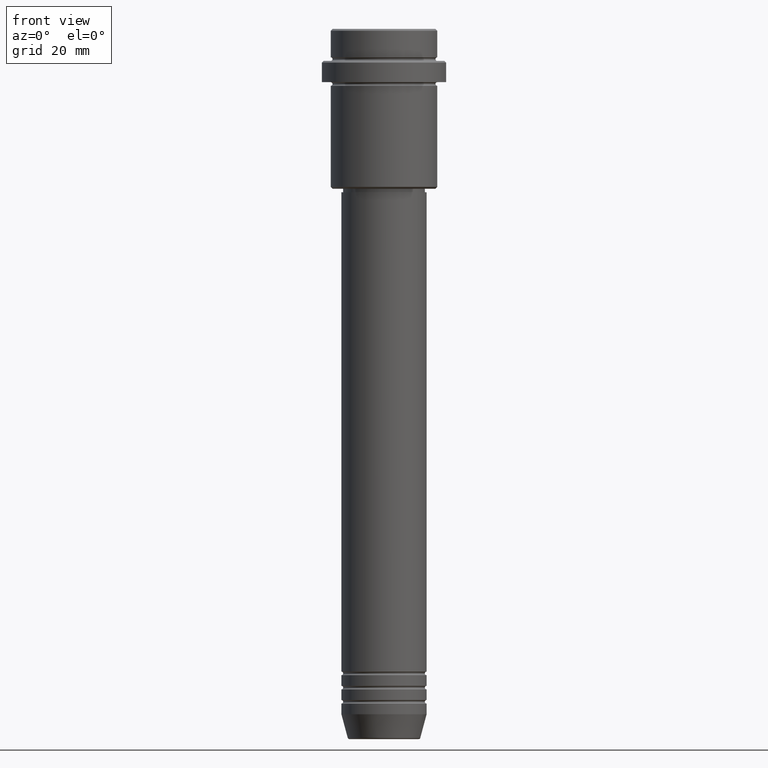
[diagram: clean part render]
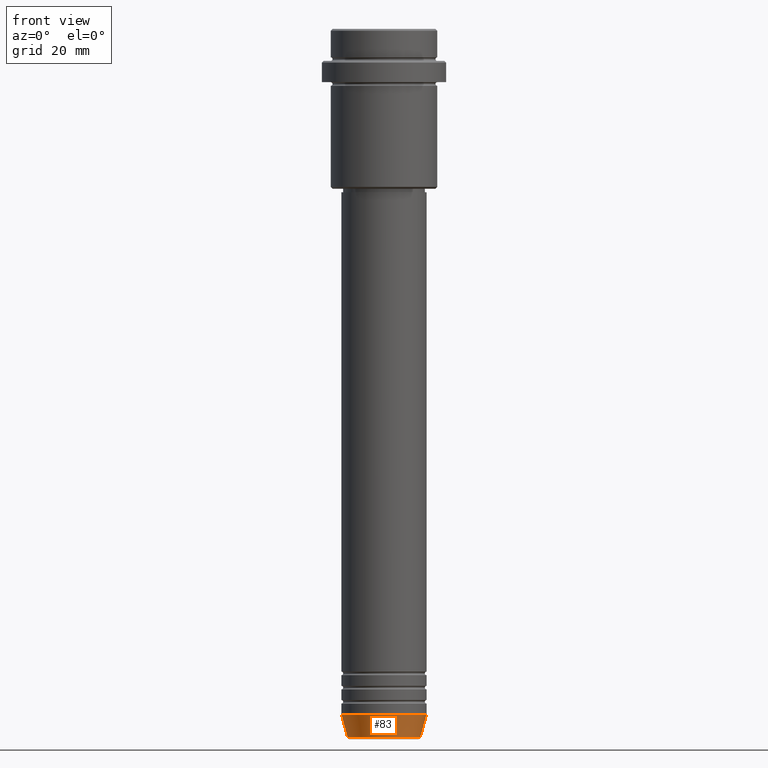
[diagram: same view with one face highlighted and labeled with its STEP entity id]
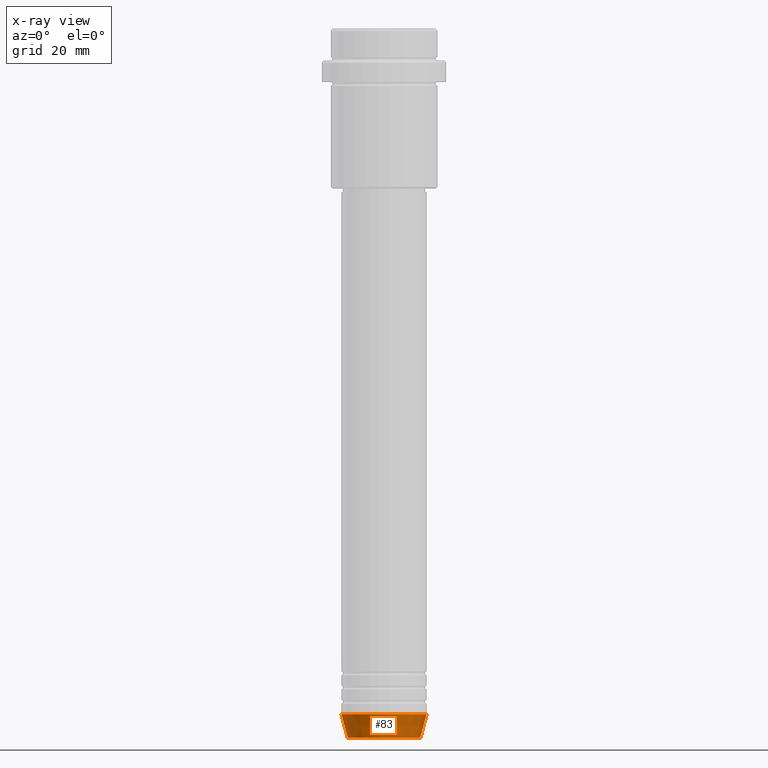
[diagram: x-ray of the same camera — body ghosted, the highlighted face saturated]
A machine part, front view. The second image highlights one B-rep face of the part: STEP entity #83.
The next image is the same camera in x-ray: the body ghosted, the highlighted face saturated — about 0% of this face is hidden behind the body in this view.
In plain terms, the highlighted conical surface has half-angle 15 deg.
Its self-contained STEP definition (entity closure, byte-faithful):
#1 = CARTESIAN_POINT ( 'NONE',  ( 10.22365507213719127, 0.000000000000000000, -199.6294095225512706 ) ) ;
#30 = DIRECTION ( 'NONE',  ( 1.000000000000000000, 0.000000000000000000, 0.000000000000000000 ) ) ;
#34 = VERTEX_POINT ( 'NONE', #720 ) ;
#40 = EDGE_CURVE ( 'NONE', #262, #34, #963, .T. ) ;
#83 = ADVANCED_FACE ( 'NONE', ( #483 ), #271, .T. ) ;
#113 = VERTEX_POINT ( 'NONE', #388 ) ;
#125 = CIRCLE ( 'NONE', #557, 10.22365507213719127 ) ;
#148 = DIRECTION ( 'NONE',  ( -0.000000000000000000, -0.000000000000000000, 1.000000000000000000 ) ) ;
#168 = CARTESIAN_POINT ( 'NONE',  ( 12.00000000000000000, 0.000000000000000000, -193.0000000000000000 ) ) ;
#222 = VECTOR ( 'NONE', #949, 1000.000000000000000 ) ;
#244 = DIRECTION ( 'NONE',  ( -0.2588190451025213501, 3.169619151431772337E-17, 0.9659258262890680902 ) ) ;
#262 = VERTEX_POINT ( 'NONE', #1055 ) ;
#271 = CONICAL_SURFACE ( 'NONE', #671, 12.00000000000000000, 0.2617993877991500740 ) ;
#338 = ORIENTED_EDGE ( 'NONE', *, *, #40, .F. ) ;
#353 = ORIENTED_EDGE ( 'NONE', *, *, #490, .T. ) ;
#388 = CARTESIAN_POINT ( 'NONE',  ( -10.22365507213719127, 1.360806402472382744E-15, -199.6294095225512706 ) ) ;
#463 = DIRECTION ( 'NONE',  ( -0.000000000000000000, -0.000000000000000000, 1.000000000000000000 ) ) ;
#483 = FACE_OUTER_BOUND ( 'NONE', #566, .T. ) ;
#490 = EDGE_CURVE ( 'NONE', #113, #1382, #125, .T. ) ;
#557 = AXIS2_PLACEMENT_3D ( 'NONE', #1323, #800, #30 ) ;
#566 = EDGE_LOOP ( 'NONE', ( #858, #353, #1017, #338 ) ) ;
#666 = LINE ( 'NONE', #1002, #874 ) ;
#671 = AXIS2_PLACEMENT_3D ( 'NONE', #1042, #148, #706 ) ;
#706 = DIRECTION ( 'NONE',  ( 1.000000000000000000, 0.000000000000000000, 0.000000000000000000 ) ) ;
#720 = CARTESIAN_POINT ( 'NONE',  ( 12.00000000000000000, 0.000000000000000000, -193.0000000000000000 ) ) ;
#800 = DIRECTION ( 'NONE',  ( -0.000000000000000000, -0.000000000000000000, 1.000000000000000000 ) ) ;
#844 = EDGE_CURVE ( 'NONE', #113, #262, #666, .T. ) ;
#858 = ORIENTED_EDGE ( 'NONE', *, *, #844, .F. ) ;
#874 = VECTOR ( 'NONE', #244, 1000.000000000000000 ) ;
#914 = CARTESIAN_POINT ( 'NONE',  ( 0.000000000000000000, 0.000000000000000000, -193.0000000000000000 ) ) ;
#949 = DIRECTION ( 'NONE',  ( 0.2588190451025213501, 0.000000000000000000, 0.9659258262890680902 ) ) ;
#963 = CIRCLE ( 'NONE', #1072, 12.00000000000000000 ) ;
#1002 = CARTESIAN_POINT ( 'NONE',  ( -12.00000000000000000, 1.469576158976823947E-15, -193.0000000000000000 ) ) ;
#1017 = ORIENTED_EDGE ( 'NONE', *, *, #1372, .T. ) ;
#1042 = CARTESIAN_POINT ( 'NONE',  ( 0.000000000000000000, 0.000000000000000000, -193.0000000000000000 ) ) ;
#1055 = CARTESIAN_POINT ( 'NONE',  ( -12.00000000000000000, 1.469576158976823947E-15, -193.0000000000000000 ) ) ;
#1072 = AXIS2_PLACEMENT_3D ( 'NONE', #914, #463, #1343 ) ;
#1160 = LINE ( 'NONE', #168, #222 ) ;
#1323 = CARTESIAN_POINT ( 'NONE',  ( 0.000000000000000000, 0.000000000000000000, -199.6294095225512706 ) ) ;
#1343 = DIRECTION ( 'NONE',  ( 1.000000000000000000, 0.000000000000000000, 0.000000000000000000 ) ) ;
#1372 = EDGE_CURVE ( 'NONE', #1382, #34, #1160, .T. ) ;
#1382 = VERTEX_POINT ( 'NONE', #1 ) ;